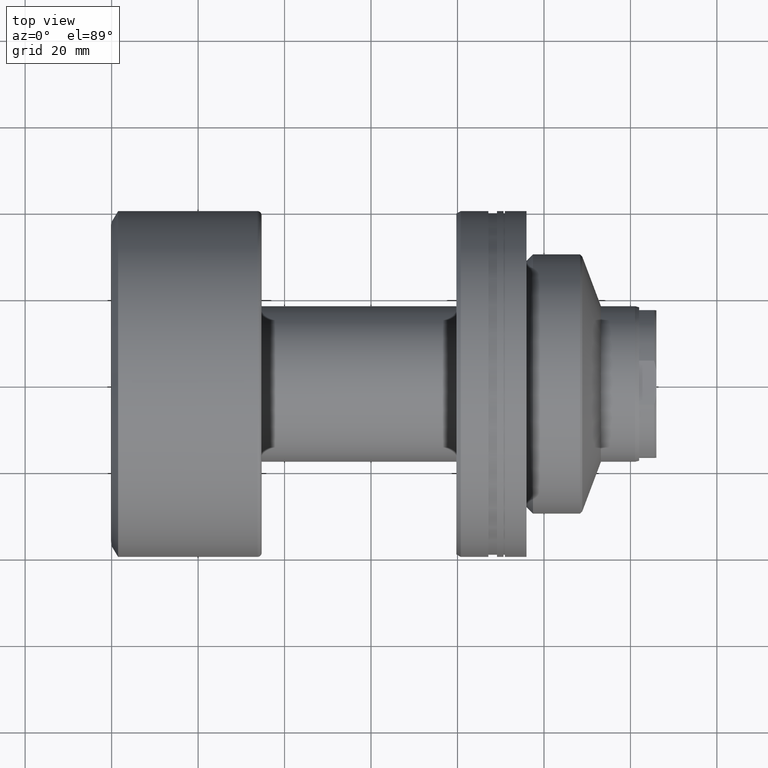
[diagram: clean part render]
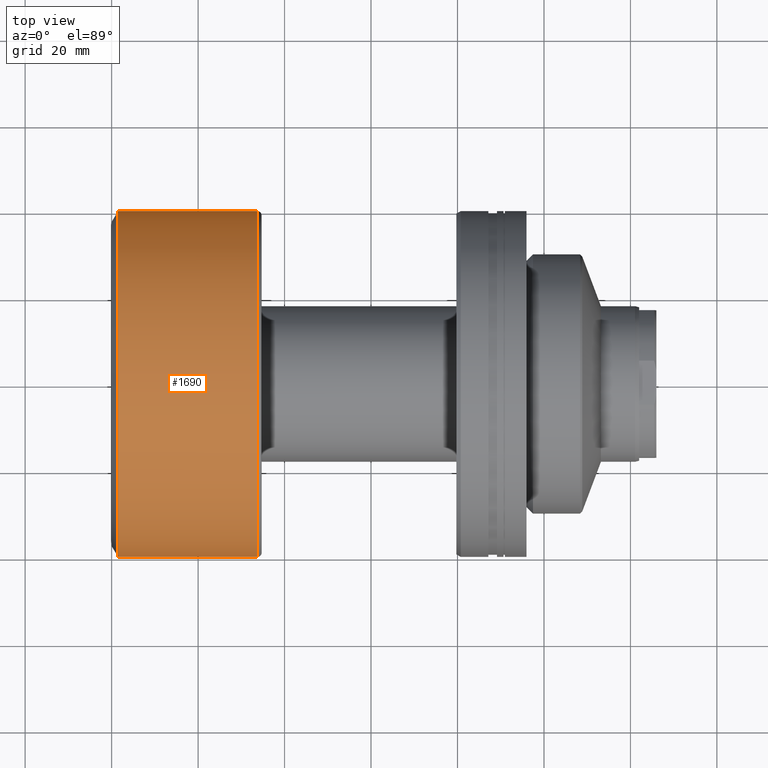
[diagram: same view with one face highlighted and labeled with its STEP entity id]
A machine part, top view. The second image highlights one B-rep face of the part: STEP entity #1690.
In plain terms, the highlighted cylindrical surface (partial cylindrical patch) has radius 40 mm, axis along (-1, -0, -0).
Its self-contained STEP definition (entity closure, byte-faithful):
#26 = DIRECTION ( 'NONE',  ( -1.000000000000000000, -1.069542322069065801E-17, -0.000000000000000000 ) ) ;
#94 = DIRECTION ( 'NONE',  ( -1.000000000000000000, -1.069542322069065801E-17, -0.000000000000000000 ) ) ;
#142 = VERTEX_POINT ( 'NONE', #1332 ) ;
#279 = LINE ( 'NONE', #1712, #828 ) ;
#345 = CARTESIAN_POINT ( 'NONE',  ( 1.500000000000004219, 39.99999999999999289, 0.000000000000000000 ) ) ;
#359 = AXIS2_PLACEMENT_3D ( 'NONE', #1754, #2277, #2078 ) ;
#370 = VERTEX_POINT ( 'NONE', #345 ) ;
#381 = ORIENTED_EDGE ( 'NONE', *, *, #1457, .T. ) ;
#484 = AXIS2_PLACEMENT_3D ( 'NONE', #493, #1896, #1726 ) ;
#493 = CARTESIAN_POINT ( 'NONE',  ( 0.000000000000000000, 0.000000000000000000, 0.000000000000000000 ) ) ;
#650 = EDGE_CURVE ( 'NONE', #142, #1936, #1735, .T. ) ;
#668 = CARTESIAN_POINT ( 'NONE',  ( 4.278169288276262587E-16, -39.99999999999999289, 0.000000000000000000 ) ) ;
#733 = EDGE_LOOP ( 'NONE', ( #381, #822, #1026, #1756 ) ) ;
#746 = CARTESIAN_POINT ( 'NONE',  ( 33.70000000000000284, 3.604357625372751759E-16, 0.000000000000000000 ) ) ;
#765 = EDGE_CURVE ( 'NONE', #1936, #370, #1382, .T. ) ;
#781 = CARTESIAN_POINT ( 'NONE',  ( 1.500000000000005107, -39.99999999999999289, 4.898587196589412237E-15 ) ) ;
#822 = ORIENTED_EDGE ( 'NONE', *, *, #1611, .T. ) ;
#828 = VECTOR ( 'NONE', #94, 1000.000000000000000 ) ;
#1026 = ORIENTED_EDGE ( 'NONE', *, *, #765, .F. ) ;
#1181 = CYLINDRICAL_SURFACE ( 'NONE', #484, 39.99999999999999289 ) ;
#1301 = DIRECTION ( 'NONE',  ( 0.000000000000000000, -1.000000000000000000, 0.000000000000000000 ) ) ;
#1332 = CARTESIAN_POINT ( 'NONE',  ( 33.70000000000000284, -39.99999999999999289, 0.000000000000000000 ) ) ;
#1335 = CARTESIAN_POINT ( 'NONE',  ( 33.70000000000000284, 39.99999999999999289, 4.898587196589412237E-15 ) ) ;
#1382 = CIRCLE ( 'NONE', #359, 39.99999999999999289 ) ;
#1395 = FACE_OUTER_BOUND ( 'NONE', #733, .T. ) ;
#1414 = VECTOR ( 'NONE', #1901, 1000.000000000000000 ) ;
#1457 = EDGE_CURVE ( 'NONE', #142, #1578, #1564, .T. ) ;
#1564 = CIRCLE ( 'NONE', #1685, 39.99999999999999289 ) ;
#1578 = VERTEX_POINT ( 'NONE', #1335 ) ;
#1611 = EDGE_CURVE ( 'NONE', #1578, #370, #279, .T. ) ;
#1685 = AXIS2_PLACEMENT_3D ( 'NONE', #746, #26, #1301 ) ;
#1690 = ADVANCED_FACE ( 'NONE', ( #1395 ), #1181, .T. ) ;
#1712 = CARTESIAN_POINT ( 'NONE',  ( -4.278169288276262587E-16, 39.99999999999999289, 4.898587196589412237E-15 ) ) ;
#1726 = DIRECTION ( 'NONE',  ( 1.069542322069065801E-17, -1.000000000000000000, 0.000000000000000000 ) ) ;
#1735 = LINE ( 'NONE', #668, #1414 ) ;
#1754 = CARTESIAN_POINT ( 'NONE',  ( 1.500000000000004663, 1.604313483103603400E-17, 0.000000000000000000 ) ) ;
#1756 = ORIENTED_EDGE ( 'NONE', *, *, #650, .F. ) ;
#1896 = DIRECTION ( 'NONE',  ( -1.000000000000000000, -1.069542322069065801E-17, -0.000000000000000000 ) ) ;
#1901 = DIRECTION ( 'NONE',  ( -1.000000000000000000, -1.069542322069065801E-17, -0.000000000000000000 ) ) ;
#1936 = VERTEX_POINT ( 'NONE', #781 ) ;
#2078 = DIRECTION ( 'NONE',  ( 1.084202172485504588E-17, -1.000000000000000000, 0.000000000000000000 ) ) ;
#2277 = DIRECTION ( 'NONE',  ( -1.000000000000000000, -1.069542322069065801E-17, -0.000000000000000000 ) ) ;